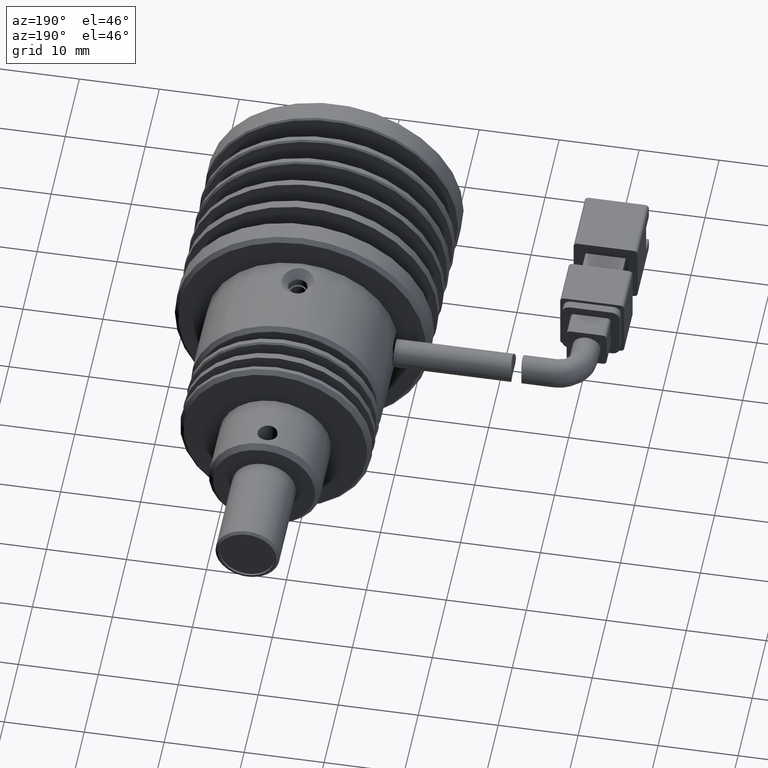
[diagram: clean part render]
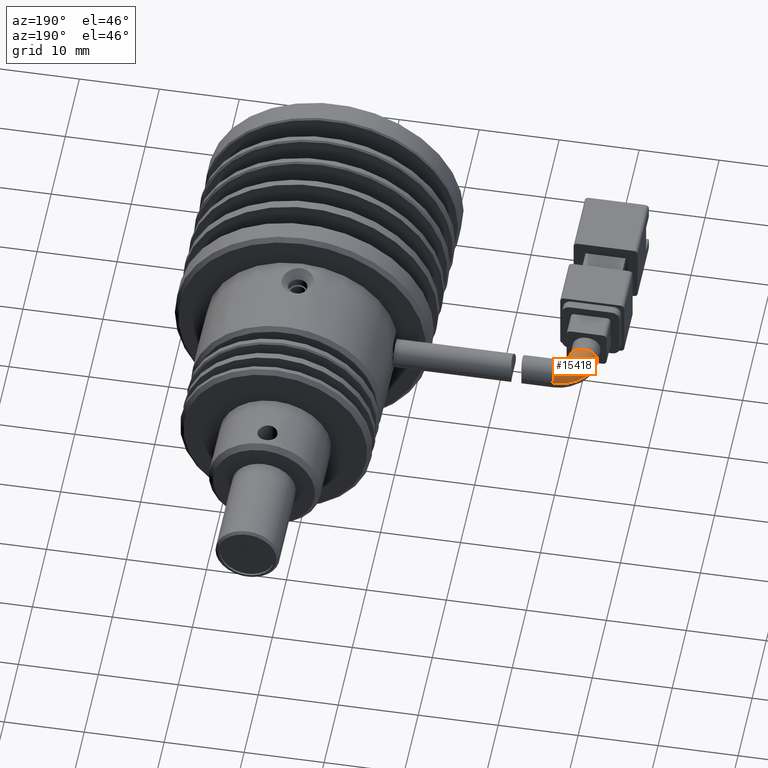
[diagram: same view with one face highlighted and labeled with its STEP entity id]
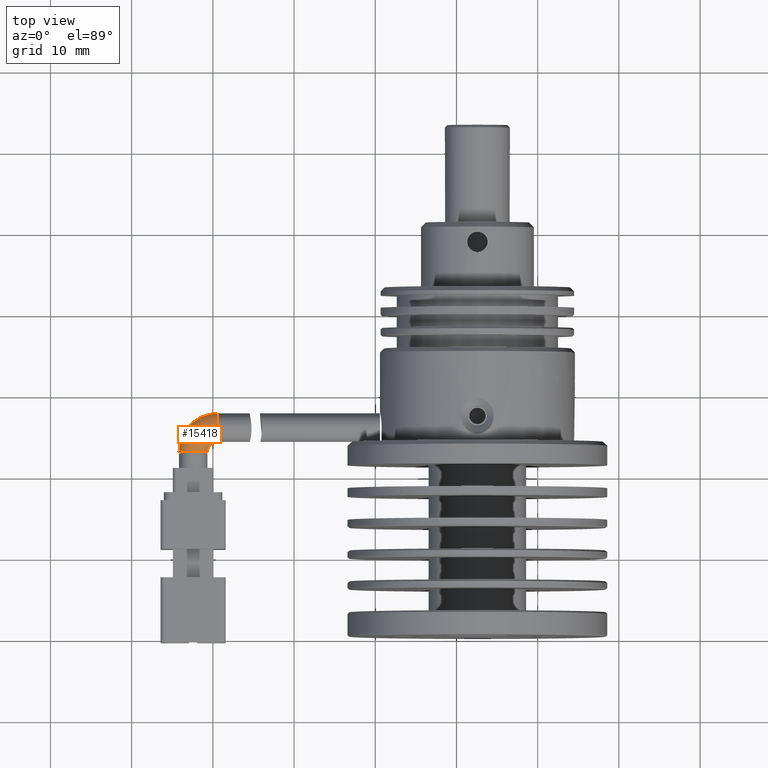
[diagram: same view with one face highlighted and labeled with its STEP entity id]
A machine part, auxiliary view. The second image highlights one B-rep face of the part: STEP entity #15418.
A second angle (top view) of the same face is appended — the face is thin or edge-on in the first view.
In plain terms, the highlighted face is a freeform B-spline surface patch.
Its self-contained STEP definition (entity closure, byte-faithful):
#7 = CARTESIAN_POINT ( 'NONE',  ( -30.67506621236417500, -16.96493551001254800, -5.574035921659396200 ) ) ;
#42 = ORIENTED_EDGE ( 'NONE', *, *, #3334, .T. ) ;
#903 = CARTESIAN_POINT ( 'NONE',  ( -32.42506621236418600, -16.96493551001254500, -9.074035921659396200 ) ) ;
#1008 = DIRECTION ( 'NONE',  ( 3.590459175806343900E-017, 1.137978600240785100E-015, -1.000000000000000000 ) ) ;
#1422 = CARTESIAN_POINT ( 'NONE',  ( -34.17506621236417900, -16.96493551001254500, -9.074035921659396200 ) ) ;
#1542 = CARTESIAN_POINT ( 'NONE',  ( -30.15729925939781400, -15.71493551001255400, -5.574035921659395300 ) ) ;
#2365 = VERTEX_POINT ( 'NONE', #13158 ) ;
#2433 = DIRECTION ( 'NONE',  ( -1.000000000000000000, 0.0000000000000000000, 0.0000000000000000000 ) ) ;
#3092 = CARTESIAN_POINT ( 'NONE',  ( -30.67506621236417500, -16.96493551001254500, -9.074035921659396200 ) ) ;
#3170 = ORIENTED_EDGE ( 'NONE', *, *, #11571, .F. ) ;
#3334 = EDGE_CURVE ( 'NONE', #15304, #2365, #6623, .T. ) ;
#3363 = FACE_OUTER_BOUND ( 'NONE', #10764, .T. ) ;
#4495 = EDGE_CURVE ( 'NONE', #2365, #16594, #10447, .T. ) ;
#4581 = CARTESIAN_POINT ( 'NONE',  ( -34.17506621236417900, -14.18244993128475100, -9.074035921659392700 ) ) ;
#4642 = CARTESIAN_POINT ( 'NONE',  ( -30.15729925939781400, -15.71493551001255000, -9.074035921659394400 ) ) ;
#6122 = CARTESIAN_POINT ( 'NONE',  ( -29.42506621236418200, -12.21493551001254300, -9.074035921659390900 ) ) ;
#6265 = AXIS2_PLACEMENT_3D ( 'NONE', #10225, #1008, #11780 ) ;
#6598 = CARTESIAN_POINT ( 'NONE',  ( -29.42506621236418200, -13.96493551001254700, -9.074035921659392700 ) ) ;
#6623 = CIRCLE ( 'NONE', #10565, 1.250000000000001100 ) ;
#7214 = CARTESIAN_POINT ( 'NONE',  ( -30.67506621236418200, -16.96493551001254500, -9.074035921659396200 ) ) ;
#7651 = CIRCLE ( 'NONE', #17484, 1.750000000000001600 ) ;
#7669 = CARTESIAN_POINT ( 'NONE',  ( -34.17506621236417900, -14.18244993128475400, -5.574035921659392700 ) ) ;
#7772 = CARTESIAN_POINT ( 'NONE',  ( -29.42506621236418200, -12.21493551001254800, -9.074035921659390900 ) ) ;
#8128 = DIRECTION ( 'NONE',  ( 0.0000000000000000000, 1.000000000000000000, 9.912705577010326500E-016 ) ) ;
#8856 = DIRECTION ( 'NONE',  ( 3.590459175806343900E-017, 1.137978600240785100E-015, -1.000000000000000000 ) ) ;
#9213 = CARTESIAN_POINT ( 'NONE',  ( -29.42506621236418200, -12.21493551001255200, -5.574035921659390900 ) ) ;
#10225 = CARTESIAN_POINT ( 'NONE',  ( -29.42506621236418200, -16.96493551001254500, -9.074035921659396200 ) ) ;
#10299 = CARTESIAN_POINT ( 'NONE',  ( -34.17506621236418600, -16.96493551001254500, -9.074035921659396200 ) ) ;
#10327 = AXIS2_PLACEMENT_3D ( 'NONE', #6598, #17335, #8128 ) ;
#10447 = CIRCLE ( 'NONE', #10327, 1.749999999999999800 ) ;
#10565 = AXIS2_PLACEMENT_3D ( 'NONE', #18053, #8856, #19590 ) ;
#10764 = EDGE_LOOP ( 'NONE', ( #3170, #42, #13853, #18832 ) ) ;
#10773 = CARTESIAN_POINT ( 'NONE',  ( -30.67506621236417900, -16.23270246297892100, -5.574035921659395300 ) ) ;
#11571 = EDGE_CURVE ( 'NONE', #15304, #16436, #7651, .T. ) ;
#11654 = DIRECTION ( 'NONE',  ( -4.004532030177548000E-016, -1.000000000000000000, -1.137978600240785100E-015 ) ) ;
#11780 = DIRECTION ( 'NONE',  ( 0.0000000000000000000, 1.000000000000000000, 1.095614826932720400E-015 ) ) ;
#12288 = CARTESIAN_POINT ( 'NONE',  ( -29.42506621236418200, -15.71493551001255200, -5.574035921659395300 ) ) ;
#13158 = CARTESIAN_POINT ( 'NONE',  ( -29.42506621236418200, -15.71493551001254800, -9.074035921659394400 ) ) ;
#13853 = ORIENTED_EDGE ( 'NONE', *, *, #4495, .T. ) ;
#13855 = CARTESIAN_POINT ( 'NONE',  ( -30.67506621236417500, -16.23270246297891700, -9.074035921659396200 ) ) ;
#15304 = VERTEX_POINT ( 'NONE', #7214 ) ;
#15335 = CARTESIAN_POINT ( 'NONE',  ( -32.20755179109198700, -12.21493551001254100, -9.074035921659389100 ) ) ;
#15392 = CARTESIAN_POINT ( 'NONE',  ( -29.42506621236418200, -15.71493551001254800, -9.074035921659394400 ) ) ;
#15418 = ADVANCED_FACE ( 'NONE', ( #3363 ), #18830, .T. ) ;
#16425 = EDGE_CURVE ( 'NONE', #16436, #16594, #18726, .T. ) ;
#16436 = VERTEX_POINT ( 'NONE', #10299 ) ;
#16594 = VERTEX_POINT ( 'NONE', #7772 ) ;
#16870 = CARTESIAN_POINT ( 'NONE',  ( -34.17506621236417900, -16.96493551001254800, -5.574035921659396200 ) ) ;
#17335 = DIRECTION ( 'NONE',  ( -1.000000000000000000, 1.861400131669680400E-016, -3.590459175806322900E-017 ) ) ;
#17484 = AXIS2_PLACEMENT_3D ( 'NONE', #903, #11654, #2433 ) ;
#18053 = CARTESIAN_POINT ( 'NONE',  ( -29.42506621236418200, -16.96493551001254500, -9.074035921659396200 ) ) ;
#18421 = CARTESIAN_POINT ( 'NONE',  ( -32.20755179109197300, -12.21493551001254800, -5.574035921659390000 ) ) ;
#18726 = CIRCLE ( 'NONE', #6265, 4.749999999999999100 ) ;
#18830 =( BOUNDED_SURFACE ( )  B_SPLINE_SURFACE ( 3, 3, ( 
 ( #1422, #4581, #15335, #6122 ),
 ( #16870, #7669, #18421, #9213 ),
 ( #7, #10773, #1542, #12288 ),
 ( #3092, #13855, #4642, #15392 ) ),
 .UNSPECIFIED., .F., .F., .F. ) 
 B_SPLINE_SURFACE_WITH_KNOTS ( ( 4, 4 ),
 ( 4, 4 ),
 ( 0.0000000000000000000, 1.000000000000000000 ),
 ( 0.0000000000000000000, 1.000000000000000000 ),
 .UNSPECIFIED. ) 
 GEOMETRIC_REPRESENTATION_ITEM ( )  RATIONAL_B_SPLINE_SURFACE ( (
 ( 1.000000000000000000, 0.8047378541243649400, 0.8047378541243649400, 1.000000000000000000),
 ( 0.3333333333333333700, 0.2682459513747883500, 0.2682459513747883500, 0.3333333333333333700),
 ( 0.3333333333333333700, 0.2682459513747883500, 0.2682459513747883500, 0.3333333333333333700),
 ( 1.000000000000000000, 0.8047378541243649400, 0.8047378541243649400, 1.000000000000000000) ) ) 
 REPRESENTATION_ITEM ( '' )  SURFACE ( )  );
#18832 = ORIENTED_EDGE ( 'NONE', *, *, #16425, .F. ) ;
#19590 = DIRECTION ( 'NONE',  ( 0.0000000000000000000, 1.000000000000000000, 1.387778780781444500E-015 ) ) ;